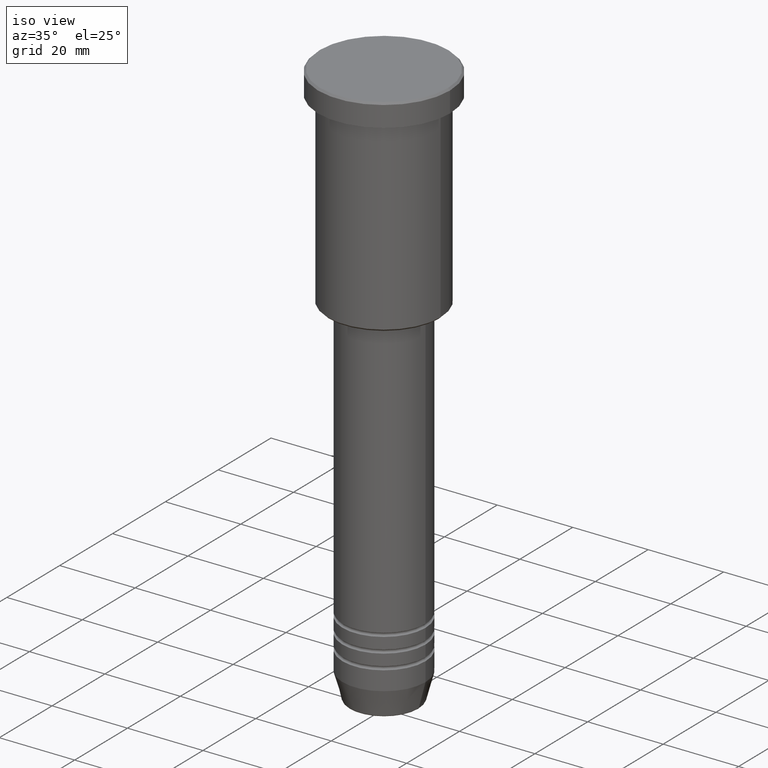
[diagram: clean part render]
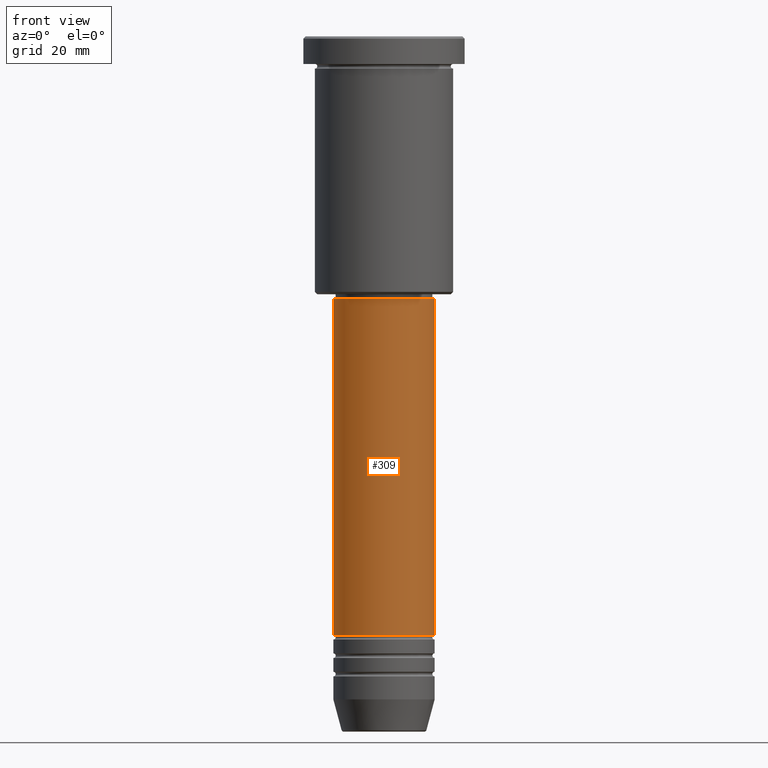
[diagram: tour spotlight — one face highlighted and labeled with its STEP entity id]
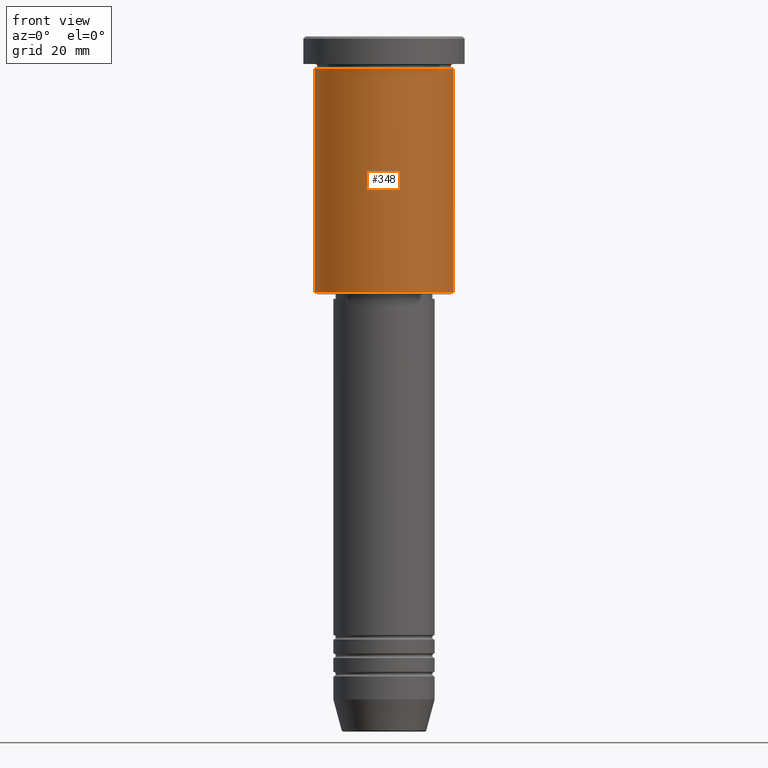
[diagram: tour spotlight — one face highlighted and labeled with its STEP entity id]
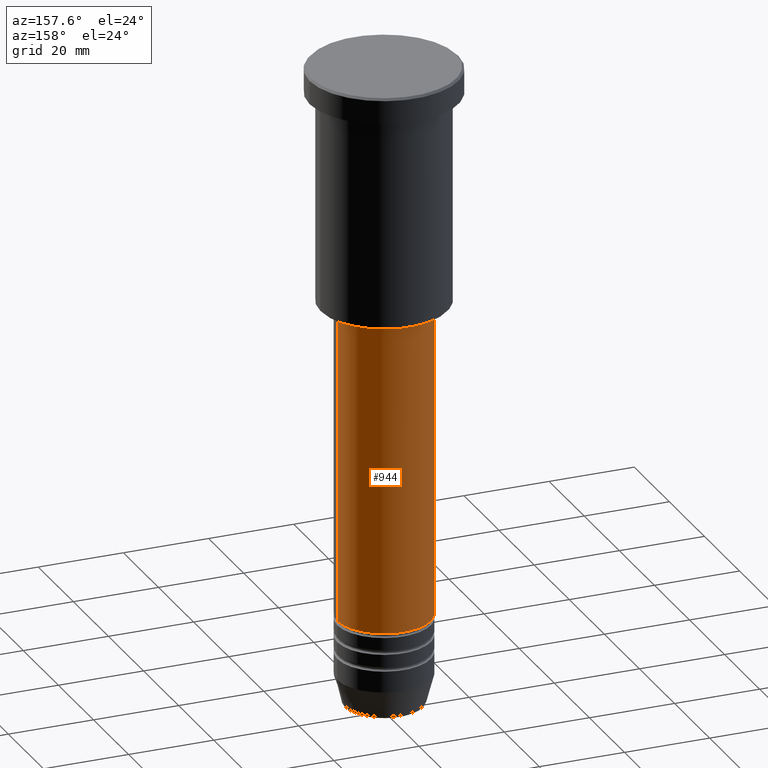
[diagram: tour spotlight — one face highlighted and labeled with its STEP entity id]
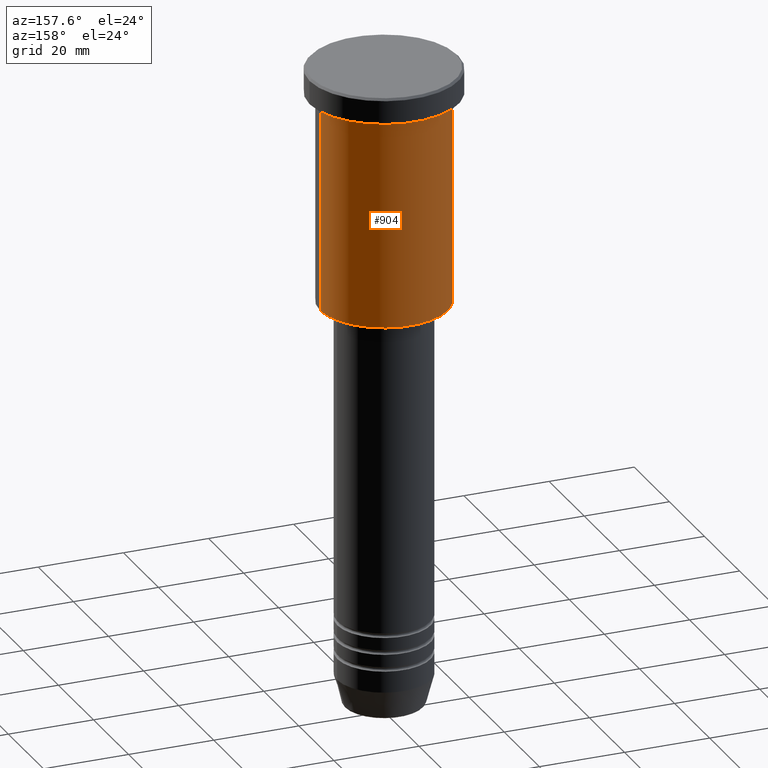
[diagram: tour spotlight — one face highlighted and labeled with its STEP entity id]
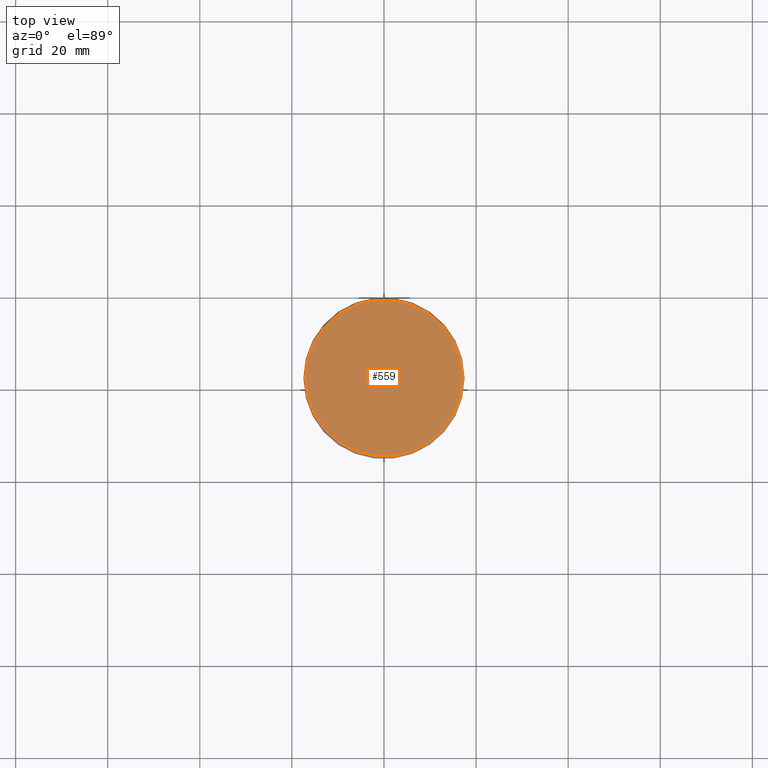
[diagram: tour spotlight — one face highlighted and labeled with its STEP entity id]
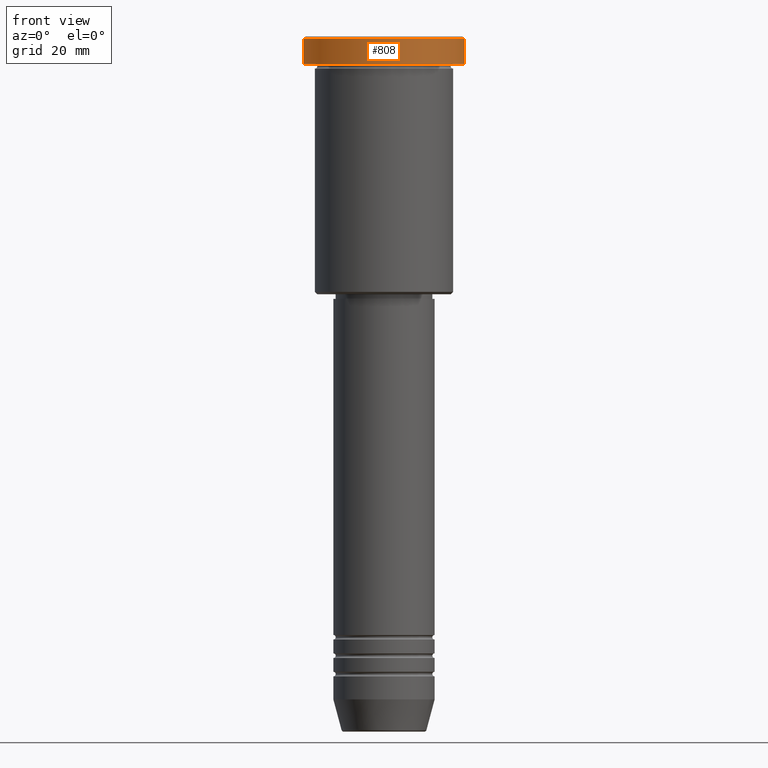
[diagram: tour spotlight — one face highlighted and labeled with its STEP entity id]
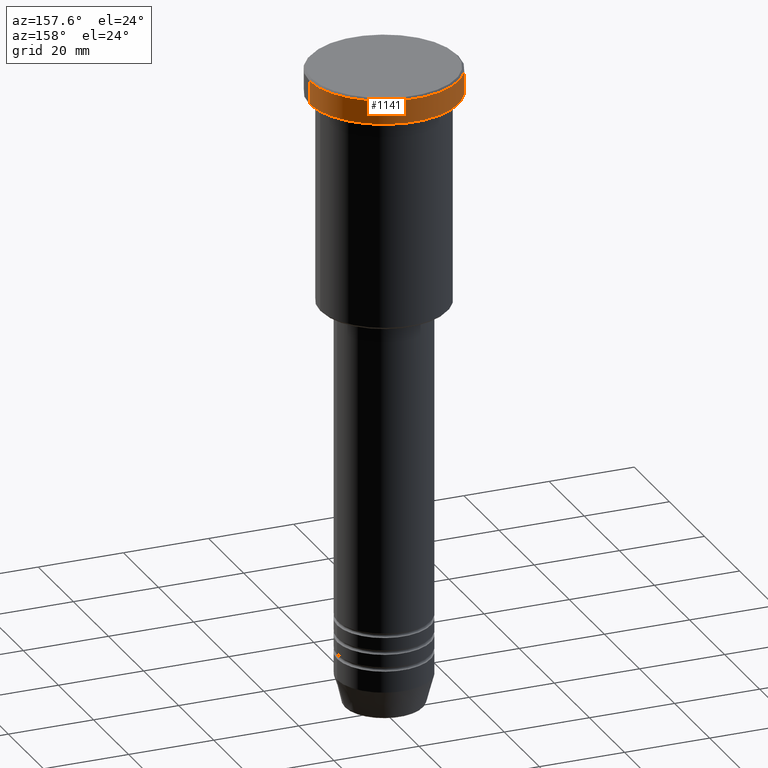
[diagram: tour spotlight — one face highlighted and labeled with its STEP entity id]
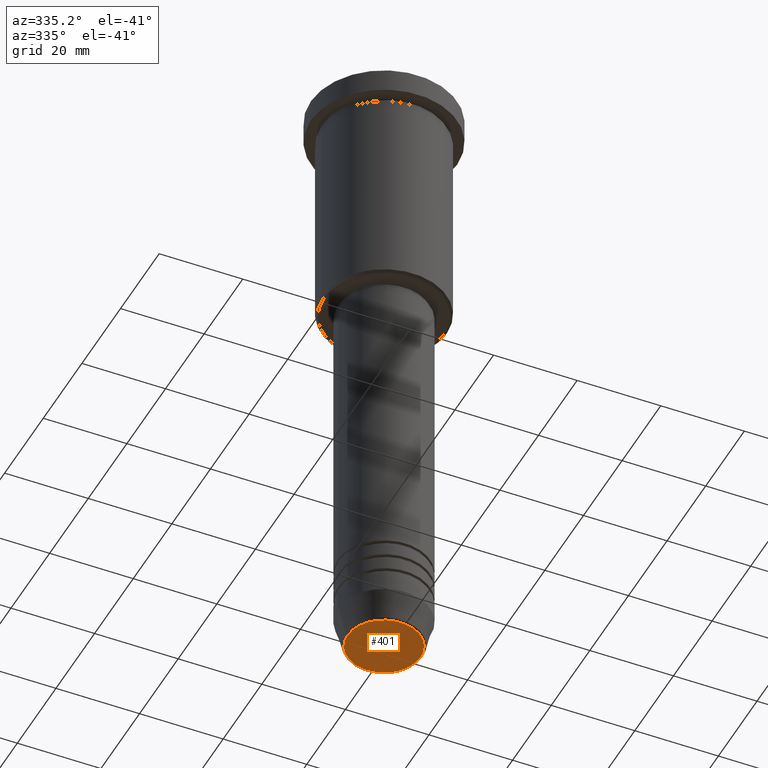
[diagram: tour spotlight — one face highlighted and labeled with its STEP entity id]
A machine part: a face-by-face anatomy tour. The part has 43 B-rep faces; the first image is the clean iso view, then the 8 largest visible faces are spotlighted one at a time (largest first), each with its STEP entity span.

Face 1 — front view, entity #309. In plain terms, the highlighted cylindrical surface (partial cylindrical patch) has radius 11 mm, axis along (-0, -0, 1).
Definition (entity closure, byte-faithful):
#21 = ORIENTED_EDGE ( 'NONE', *, *, #1041, .F. ) ;
#23 = DIRECTION ( 'NONE',  ( 1.000000000000000000, 0.000000000000000000, 0.000000000000000000 ) ) ;
#155 = VERTEX_POINT ( 'NONE', #922 ) ;
#157 = AXIS2_PLACEMENT_3D ( 'NONE', #601, #529, #957 ) ;
#168 = DIRECTION ( 'NONE',  ( 1.000000000000000000, 0.000000000000000000, 0.000000000000000000 ) ) ;
#203 = EDGE_CURVE ( 'NONE', #783, #155, #392, .T. ) ;
#218 = ORIENTED_EDGE ( 'NONE', *, *, #370, .F. ) ;
#227 = LINE ( 'NONE', #949, #554 ) ;
#228 = CYLINDRICAL_SURFACE ( 'NONE', #157, 11.00000000000000000 ) ;
#270 = EDGE_CURVE ( 'NONE', #466, #783, #906, .T. ) ;
#306 = CARTESIAN_POINT ( 'NONE',  ( 0.000000000000000000, 0.000000000000000000, -129.9999999999998863 ) ) ;
#309 = ADVANCED_FACE ( 'NONE', ( #1046 ), #228, .T. ) ;
#370 = EDGE_CURVE ( 'NONE', #432, #155, #764, .T. ) ;
#380 = AXIS2_PLACEMENT_3D ( 'NONE', #645, #634, #168 ) ;
#392 = LINE ( 'NONE', #575, #828 ) ;
#398 = AXIS2_PLACEMENT_3D ( 'NONE', #306, #494, #23 ) ;
#432 = VERTEX_POINT ( 'NONE', #674 ) ;
#466 = VERTEX_POINT ( 'NONE', #1010 ) ;
#494 = DIRECTION ( 'NONE',  ( -0.000000000000000000, -0.000000000000000000, 1.000000000000000000 ) ) ;
#529 = DIRECTION ( 'NONE',  ( -0.000000000000000000, -0.000000000000000000, 1.000000000000000000 ) ) ;
#554 = VECTOR ( 'NONE', #874, 1000.000000000000000 ) ;
#575 = CARTESIAN_POINT ( 'NONE',  ( 11.00000000000000000, 0.000000000000000000, 0.000000000000000000 ) ) ;
#591 = CARTESIAN_POINT ( 'NONE',  ( 11.00000000000000000, 0.000000000000000000, -129.9999999999998863 ) ) ;
#601 = CARTESIAN_POINT ( 'NONE',  ( 0.000000000000000000, 0.000000000000000000, 0.000000000000000000 ) ) ;
#622 = ORIENTED_EDGE ( 'NONE', *, *, #270, .T. ) ;
#634 = DIRECTION ( 'NONE',  ( -0.000000000000000000, -0.000000000000000000, 1.000000000000000000 ) ) ;
#645 = CARTESIAN_POINT ( 'NONE',  ( 0.000000000000000000, 0.000000000000000000, -57.00000000000000000 ) ) ;
#674 = CARTESIAN_POINT ( 'NONE',  ( -11.00000000000000000, 1.347111479062088405E-15, -57.00000000000000000 ) ) ;
#693 = ORIENTED_EDGE ( 'NONE', *, *, #203, .T. ) ;
#764 = CIRCLE ( 'NONE', #380, 11.00000000000000000 ) ;
#783 = VERTEX_POINT ( 'NONE', #591 ) ;
#828 = VECTOR ( 'NONE', #930, 1000.000000000000000 ) ;
#874 = DIRECTION ( 'NONE',  ( -0.000000000000000000, -0.000000000000000000, 1.000000000000000000 ) ) ;
#906 = CIRCLE ( 'NONE', #398, 11.00000000000000000 ) ;
#922 = CARTESIAN_POINT ( 'NONE',  ( 11.00000000000000000, 0.000000000000000000, -57.00000000000000000 ) ) ;
#930 = DIRECTION ( 'NONE',  ( -0.000000000000000000, -0.000000000000000000, 1.000000000000000000 ) ) ;
#949 = CARTESIAN_POINT ( 'NONE',  ( -11.00000000000000000, 1.347111479062088405E-15, 0.000000000000000000 ) ) ;
#957 = DIRECTION ( 'NONE',  ( 1.000000000000000000, 0.000000000000000000, 0.000000000000000000 ) ) ;
#1010 = CARTESIAN_POINT ( 'NONE',  ( -11.00000000000000000, 1.347111479062088405E-15, -129.9999999999998863 ) ) ;
#1041 = EDGE_CURVE ( 'NONE', #466, #432, #227, .T. ) ;
#1046 = FACE_OUTER_BOUND ( 'NONE', #1153, .T. ) ;
#1153 = EDGE_LOOP ( 'NONE', ( #21, #622, #693, #218 ) ) ;

Face 2 — front view, entity #348. In plain terms, the highlighted cylindrical surface (partial cylindrical patch) has radius 15 mm, axis along (-0, -0, 1).
Definition (entity closure, byte-faithful):
#34 = ORIENTED_EDGE ( 'NONE', *, *, #602, .F. ) ;
#72 = DIRECTION ( 'NONE',  ( -1.000000000000000000, 0.000000000000000000, 0.000000000000000000 ) ) ;
#79 = CARTESIAN_POINT ( 'NONE',  ( 0.000000000000000000, 0.000000000000000000, -55.49999999999996447 ) ) ;
#89 = CARTESIAN_POINT ( 'NONE',  ( 0.000000000000000000, 0.000000000000000000, -6.999999999999995559 ) ) ;
#104 = DIRECTION ( 'NONE',  ( -0.000000000000000000, -0.000000000000000000, 1.000000000000000000 ) ) ;
#142 = DIRECTION ( 'NONE',  ( -0.000000000000000000, -0.000000000000000000, 1.000000000000000000 ) ) ;
#211 = ORIENTED_EDGE ( 'NONE', *, *, #660, .T. ) ;
#217 = VECTOR ( 'NONE', #142, 1000.000000000000000 ) ;
#262 = DIRECTION ( 'NONE',  ( -0.000000000000000000, -0.000000000000000000, 1.000000000000000000 ) ) ;
#289 = LINE ( 'NONE', #570, #954 ) ;
#313 = EDGE_LOOP ( 'NONE', ( #34, #211, #1137, #457 ) ) ;
#318 = CIRCLE ( 'NONE', #830, 15.00000000000000000 ) ;
#334 = CARTESIAN_POINT ( 'NONE',  ( -15.00000000000000000, 1.836970198721029589E-15, -6.999999999999995559 ) ) ;
#348 = ADVANCED_FACE ( 'NONE', ( #1072 ), #1084, .T. ) ;
#363 = DIRECTION ( 'NONE',  ( 1.000000000000000000, 0.000000000000000000, 0.000000000000000000 ) ) ;
#377 = CARTESIAN_POINT ( 'NONE',  ( 0.000000000000000000, 0.000000000000000000, 0.000000000000000000 ) ) ;
#413 = CARTESIAN_POINT ( 'NONE',  ( 15.00000000000000000, 0.000000000000000000, -55.49999999999996447 ) ) ;
#451 = DIRECTION ( 'NONE',  ( -0.000000000000000000, -0.000000000000000000, 1.000000000000000000 ) ) ;
#454 = DIRECTION ( 'NONE',  ( 1.000000000000000000, 0.000000000000000000, 0.000000000000000000 ) ) ;
#456 = EDGE_CURVE ( 'NONE', #558, #883, #289, .T. ) ;
#457 = ORIENTED_EDGE ( 'NONE', *, *, #727, .F. ) ;
#547 = VERTEX_POINT ( 'NONE', #334 ) ;
#558 = VERTEX_POINT ( 'NONE', #413 ) ;
#570 = CARTESIAN_POINT ( 'NONE',  ( 15.00000000000000000, 0.000000000000000000, 0.000000000000000000 ) ) ;
#602 = EDGE_CURVE ( 'NONE', #618, #547, #859, .T. ) ;
#618 = VERTEX_POINT ( 'NONE', #1043 ) ;
#625 = AXIS2_PLACEMENT_3D ( 'NONE', #377, #262, #454 ) ;
#630 = DIRECTION ( 'NONE',  ( -0.000000000000000000, -0.000000000000000000, 1.000000000000000000 ) ) ;
#660 = EDGE_CURVE ( 'NONE', #618, #558, #318, .T. ) ;
#727 = EDGE_CURVE ( 'NONE', #547, #883, #1074, .T. ) ;
#776 = CARTESIAN_POINT ( 'NONE',  ( -15.00000000000000000, 1.836970198721029589E-15, 0.000000000000000000 ) ) ;
#830 = AXIS2_PLACEMENT_3D ( 'NONE', #79, #451, #72 ) ;
#859 = LINE ( 'NONE', #776, #217 ) ;
#883 = VERTEX_POINT ( 'NONE', #1068 ) ;
#954 = VECTOR ( 'NONE', #104, 1000.000000000000000 ) ;
#1043 = CARTESIAN_POINT ( 'NONE',  ( -15.00000000000000000, 1.836970198721029589E-15, -55.49999999999996447 ) ) ;
#1068 = CARTESIAN_POINT ( 'NONE',  ( 15.00000000000000000, 0.000000000000000000, -6.999999999999995559 ) ) ;
#1072 = FACE_OUTER_BOUND ( 'NONE', #313, .T. ) ;
#1074 = CIRCLE ( 'NONE', #1093, 15.00000000000000000 ) ;
#1084 = CYLINDRICAL_SURFACE ( 'NONE', #625, 15.00000000000000000 ) ;
#1093 = AXIS2_PLACEMENT_3D ( 'NONE', #89, #630, #363 ) ;
#1137 = ORIENTED_EDGE ( 'NONE', *, *, #456, .T. ) ;

Face 3 — auxiliary view, entity #944. In plain terms, the highlighted cylindrical surface (partial cylindrical patch) has radius 11 mm, axis along (-0, -0, 1).
Definition (entity closure, byte-faithful):
#47 = EDGE_CURVE ( 'NONE', #783, #466, #497, .T. ) ;
#111 = DIRECTION ( 'NONE',  ( 1.000000000000000000, 0.000000000000000000, 0.000000000000000000 ) ) ;
#155 = VERTEX_POINT ( 'NONE', #922 ) ;
#188 = AXIS2_PLACEMENT_3D ( 'NONE', #564, #288, #111 ) ;
#203 = EDGE_CURVE ( 'NONE', #783, #155, #392, .T. ) ;
#225 = DIRECTION ( 'NONE',  ( -0.000000000000000000, -0.000000000000000000, 1.000000000000000000 ) ) ;
#227 = LINE ( 'NONE', #949, #554 ) ;
#288 = DIRECTION ( 'NONE',  ( -0.000000000000000000, -0.000000000000000000, 1.000000000000000000 ) ) ;
#392 = LINE ( 'NONE', #575, #828 ) ;
#432 = VERTEX_POINT ( 'NONE', #674 ) ;
#455 = ORIENTED_EDGE ( 'NONE', *, *, #47, .T. ) ;
#466 = VERTEX_POINT ( 'NONE', #1010 ) ;
#468 = CYLINDRICAL_SURFACE ( 'NONE', #832, 11.00000000000000000 ) ;
#497 = CIRCLE ( 'NONE', #188, 11.00000000000000000 ) ;
#518 = ORIENTED_EDGE ( 'NONE', *, *, #1041, .T. ) ;
#554 = VECTOR ( 'NONE', #874, 1000.000000000000000 ) ;
#564 = CARTESIAN_POINT ( 'NONE',  ( 0.000000000000000000, 0.000000000000000000, -129.9999999999998863 ) ) ;
#571 = CIRCLE ( 'NONE', #715, 11.00000000000000000 ) ;
#575 = CARTESIAN_POINT ( 'NONE',  ( 11.00000000000000000, 0.000000000000000000, 0.000000000000000000 ) ) ;
#591 = CARTESIAN_POINT ( 'NONE',  ( 11.00000000000000000, 0.000000000000000000, -129.9999999999998863 ) ) ;
#593 = DIRECTION ( 'NONE',  ( 1.000000000000000000, 0.000000000000000000, 0.000000000000000000 ) ) ;
#611 = EDGE_CURVE ( 'NONE', #155, #432, #571, .T. ) ;
#659 = DIRECTION ( 'NONE',  ( 1.000000000000000000, 0.000000000000000000, 0.000000000000000000 ) ) ;
#674 = CARTESIAN_POINT ( 'NONE',  ( -11.00000000000000000, 1.347111479062088405E-15, -57.00000000000000000 ) ) ;
#689 = CARTESIAN_POINT ( 'NONE',  ( 0.000000000000000000, 0.000000000000000000, -57.00000000000000000 ) ) ;
#715 = AXIS2_PLACEMENT_3D ( 'NONE', #689, #225, #593 ) ;
#773 = EDGE_LOOP ( 'NONE', ( #455, #518, #1057, #1116 ) ) ;
#783 = VERTEX_POINT ( 'NONE', #591 ) ;
#815 = CARTESIAN_POINT ( 'NONE',  ( 0.000000000000000000, 0.000000000000000000, 0.000000000000000000 ) ) ;
#828 = VECTOR ( 'NONE', #930, 1000.000000000000000 ) ;
#832 = AXIS2_PLACEMENT_3D ( 'NONE', #815, #916, #659 ) ;
#874 = DIRECTION ( 'NONE',  ( -0.000000000000000000, -0.000000000000000000, 1.000000000000000000 ) ) ;
#916 = DIRECTION ( 'NONE',  ( -0.000000000000000000, -0.000000000000000000, 1.000000000000000000 ) ) ;
#922 = CARTESIAN_POINT ( 'NONE',  ( 11.00000000000000000, 0.000000000000000000, -57.00000000000000000 ) ) ;
#930 = DIRECTION ( 'NONE',  ( -0.000000000000000000, -0.000000000000000000, 1.000000000000000000 ) ) ;
#944 = ADVANCED_FACE ( 'NONE', ( #1169 ), #468, .T. ) ;
#949 = CARTESIAN_POINT ( 'NONE',  ( -11.00000000000000000, 1.347111479062088405E-15, 0.000000000000000000 ) ) ;
#1010 = CARTESIAN_POINT ( 'NONE',  ( -11.00000000000000000, 1.347111479062088405E-15, -129.9999999999998863 ) ) ;
#1041 = EDGE_CURVE ( 'NONE', #466, #432, #227, .T. ) ;
#1057 = ORIENTED_EDGE ( 'NONE', *, *, #611, .F. ) ;
#1116 = ORIENTED_EDGE ( 'NONE', *, *, #203, .F. ) ;
#1169 = FACE_OUTER_BOUND ( 'NONE', #773, .T. ) ;

Face 4 — auxiliary view, entity #904. In plain terms, the highlighted cylindrical surface (partial cylindrical patch) has radius 15 mm, axis along (-0, -0, 1).
Definition (entity closure, byte-faithful):
#33 = DIRECTION ( 'NONE',  ( -0.000000000000000000, -0.000000000000000000, 1.000000000000000000 ) ) ;
#104 = DIRECTION ( 'NONE',  ( -0.000000000000000000, -0.000000000000000000, 1.000000000000000000 ) ) ;
#142 = DIRECTION ( 'NONE',  ( -0.000000000000000000, -0.000000000000000000, 1.000000000000000000 ) ) ;
#165 = DIRECTION ( 'NONE',  ( -0.000000000000000000, -0.000000000000000000, 1.000000000000000000 ) ) ;
#189 = CARTESIAN_POINT ( 'NONE',  ( 0.000000000000000000, 0.000000000000000000, 0.000000000000000000 ) ) ;
#217 = VECTOR ( 'NONE', #142, 1000.000000000000000 ) ;
#289 = LINE ( 'NONE', #570, #954 ) ;
#315 = CARTESIAN_POINT ( 'NONE',  ( 0.000000000000000000, 0.000000000000000000, -6.999999999999995559 ) ) ;
#322 = CIRCLE ( 'NONE', #1109, 15.00000000000000000 ) ;
#334 = CARTESIAN_POINT ( 'NONE',  ( -15.00000000000000000, 1.836970198721029589E-15, -6.999999999999995559 ) ) ;
#413 = CARTESIAN_POINT ( 'NONE',  ( 15.00000000000000000, 0.000000000000000000, -55.49999999999996447 ) ) ;
#456 = EDGE_CURVE ( 'NONE', #558, #883, #289, .T. ) ;
#476 = DIRECTION ( 'NONE',  ( -0.000000000000000000, -0.000000000000000000, 1.000000000000000000 ) ) ;
#524 = ORIENTED_EDGE ( 'NONE', *, *, #1018, .F. ) ;
#547 = VERTEX_POINT ( 'NONE', #334 ) ;
#548 = CYLINDRICAL_SURFACE ( 'NONE', #766, 15.00000000000000000 ) ;
#557 = DIRECTION ( 'NONE',  ( 1.000000000000000000, 0.000000000000000000, 0.000000000000000000 ) ) ;
#558 = VERTEX_POINT ( 'NONE', #413 ) ;
#570 = CARTESIAN_POINT ( 'NONE',  ( 15.00000000000000000, 0.000000000000000000, 0.000000000000000000 ) ) ;
#602 = EDGE_CURVE ( 'NONE', #618, #547, #859, .T. ) ;
#618 = VERTEX_POINT ( 'NONE', #1043 ) ;
#626 = FACE_OUTER_BOUND ( 'NONE', #711, .T. ) ;
#707 = ORIENTED_EDGE ( 'NONE', *, *, #882, .T. ) ;
#711 = EDGE_LOOP ( 'NONE', ( #707, #1183, #524, #1132 ) ) ;
#766 = AXIS2_PLACEMENT_3D ( 'NONE', #189, #165, #557 ) ;
#776 = CARTESIAN_POINT ( 'NONE',  ( -15.00000000000000000, 1.836970198721029589E-15, 0.000000000000000000 ) ) ;
#807 = CARTESIAN_POINT ( 'NONE',  ( 0.000000000000000000, 0.000000000000000000, -55.49999999999996447 ) ) ;
#827 = DIRECTION ( 'NONE',  ( -1.000000000000000000, 0.000000000000000000, 0.000000000000000000 ) ) ;
#859 = LINE ( 'NONE', #776, #217 ) ;
#882 = EDGE_CURVE ( 'NONE', #558, #618, #1094, .T. ) ;
#883 = VERTEX_POINT ( 'NONE', #1068 ) ;
#904 = ADVANCED_FACE ( 'NONE', ( #626 ), #548, .T. ) ;
#954 = VECTOR ( 'NONE', #104, 1000.000000000000000 ) ;
#1018 = EDGE_CURVE ( 'NONE', #883, #547, #322, .T. ) ;
#1032 = AXIS2_PLACEMENT_3D ( 'NONE', #807, #476, #827 ) ;
#1043 = CARTESIAN_POINT ( 'NONE',  ( -15.00000000000000000, 1.836970198721029589E-15, -55.49999999999996447 ) ) ;
#1045 = DIRECTION ( 'NONE',  ( 1.000000000000000000, 0.000000000000000000, 0.000000000000000000 ) ) ;
#1068 = CARTESIAN_POINT ( 'NONE',  ( 15.00000000000000000, 0.000000000000000000, -6.999999999999995559 ) ) ;
#1094 = CIRCLE ( 'NONE', #1032, 15.00000000000000000 ) ;
#1109 = AXIS2_PLACEMENT_3D ( 'NONE', #315, #33, #1045 ) ;
#1132 = ORIENTED_EDGE ( 'NONE', *, *, #456, .F. ) ;
#1183 = ORIENTED_EDGE ( 'NONE', *, *, #602, .T. ) ;

Face 5 — top view, entity #559. In plain terms, the highlighted planar face has unit normal (0, -0, 1).
Definition (entity closure, byte-faithful):
#113 = ORIENTED_EDGE ( 'NONE', *, *, #196, .T. ) ;
#125 = DIRECTION ( 'NONE',  ( 1.000000000000000000, 0.000000000000000000, 0.000000000000000000 ) ) ;
#135 = DIRECTION ( 'NONE',  ( 1.000000000000000000, 0.000000000000000000, 0.000000000000000000 ) ) ;
#148 = FACE_OUTER_BOUND ( 'NONE', #383, .T. ) ;
#153 = VERTEX_POINT ( 'NONE', #1013 ) ;
#159 = EDGE_CURVE ( 'NONE', #999, #153, #337, .T. ) ;
#196 = EDGE_CURVE ( 'NONE', #153, #999, #959, .T. ) ;
#223 = CARTESIAN_POINT ( 'NONE',  ( 17.00000000000004263, 2.112515728529187222E-15, 0.000000000000000000 ) ) ;
#236 = ORIENTED_EDGE ( 'NONE', *, *, #159, .T. ) ;
#305 = DIRECTION ( 'NONE',  ( 1.000000000000000000, 0.000000000000000000, 0.000000000000000000 ) ) ;
#314 = PLANE ( 'NONE',  #939 ) ;
#337 = CIRCLE ( 'NONE', #513, 17.00000000000004263 ) ;
#383 = EDGE_LOOP ( 'NONE', ( #113, #236 ) ) ;
#396 = AXIS2_PLACEMENT_3D ( 'NONE', #935, #853, #125 ) ;
#501 = DIRECTION ( 'NONE',  ( -0.000000000000000000, -0.000000000000000000, 1.000000000000000000 ) ) ;
#513 = AXIS2_PLACEMENT_3D ( 'NONE', #672, #501, #305 ) ;
#521 = DIRECTION ( 'NONE',  ( 0.000000000000000000, -0.000000000000000000, 1.000000000000000000 ) ) ;
#559 = ADVANCED_FACE ( 'NONE', ( #148 ), #314, .T. ) ;
#672 = CARTESIAN_POINT ( 'NONE',  ( 0.000000000000000000, 0.000000000000000000, 0.000000000000000000 ) ) ;
#762 = CARTESIAN_POINT ( 'NONE',  ( 0.000000000000000000, 0.000000000000000000, 0.000000000000000000 ) ) ;
#853 = DIRECTION ( 'NONE',  ( -0.000000000000000000, -0.000000000000000000, 1.000000000000000000 ) ) ;
#935 = CARTESIAN_POINT ( 'NONE',  ( 0.000000000000000000, 0.000000000000000000, 0.000000000000000000 ) ) ;
#939 = AXIS2_PLACEMENT_3D ( 'NONE', #762, #521, #135 ) ;
#959 = CIRCLE ( 'NONE', #396, 17.00000000000004263 ) ;
#999 = VERTEX_POINT ( 'NONE', #223 ) ;
#1013 = CARTESIAN_POINT ( 'NONE',  ( -17.00000000000004263, 0.000000000000000000, 0.000000000000000000 ) ) ;

Face 6 — front view, entity #808. In plain terms, the highlighted cylindrical surface (partial cylindrical patch) has radius 17.5 mm, axis along (-0, -0, 1).
Definition (entity closure, byte-faithful):
#40 = VERTEX_POINT ( 'NONE', #478 ) ;
#112 = DIRECTION ( 'NONE',  ( -0.000000000000000000, -0.000000000000000000, 1.000000000000000000 ) ) ;
#139 = VECTOR ( 'NONE', #112, 1000.000000000000000 ) ;
#144 = CARTESIAN_POINT ( 'NONE',  ( 17.50000000000000000, 0.000000000000000000, 0.000000000000000000 ) ) ;
#232 = ORIENTED_EDGE ( 'NONE', *, *, #690, .T. ) ;
#237 = AXIS2_PLACEMENT_3D ( 'NONE', #539, #709, #802 ) ;
#291 = EDGE_CURVE ( 'NONE', #40, #1147, #1050, .T. ) ;
#423 = DIRECTION ( 'NONE',  ( 1.000000000000000000, 0.000000000000000000, 0.000000000000000000 ) ) ;
#443 = EDGE_CURVE ( 'NONE', #544, #1147, #1112, .T. ) ;
#444 = CARTESIAN_POINT ( 'NONE',  ( -17.50000000000000000, 2.143131898507868248E-15, -5.999999999999995559 ) ) ;
#478 = CARTESIAN_POINT ( 'NONE',  ( 17.50000000000000000, 0.000000000000000000, -0.4999999999999865663 ) ) ;
#527 = EDGE_LOOP ( 'NONE', ( #1173, #232, #1085, #1087 ) ) ;
#536 = CARTESIAN_POINT ( 'NONE',  ( -17.50000000000000000, 2.143131898507868248E-15, -0.4999999999999865663 ) ) ;
#539 = CARTESIAN_POINT ( 'NONE',  ( 0.000000000000000000, 0.000000000000000000, -5.999999999999995559 ) ) ;
#544 = VERTEX_POINT ( 'NONE', #444 ) ;
#613 = FACE_OUTER_BOUND ( 'NONE', #527, .T. ) ;
#665 = CIRCLE ( 'NONE', #237, 17.50000000000000000 ) ;
#677 = VERTEX_POINT ( 'NONE', #989 ) ;
#680 = AXIS2_PLACEMENT_3D ( 'NONE', #1114, #1117, #423 ) ;
#687 = CYLINDRICAL_SURFACE ( 'NONE', #1052, 17.50000000000000000 ) ;
#690 = EDGE_CURVE ( 'NONE', #544, #677, #665, .T. ) ;
#703 = LINE ( 'NONE', #144, #716 ) ;
#709 = DIRECTION ( 'NONE',  ( -0.000000000000000000, -0.000000000000000000, 1.000000000000000000 ) ) ;
#716 = VECTOR ( 'NONE', #940, 1000.000000000000000 ) ;
#752 = CARTESIAN_POINT ( 'NONE',  ( -17.50000000000000000, 2.143131898507868248E-15, 0.000000000000000000 ) ) ;
#802 = DIRECTION ( 'NONE',  ( 1.000000000000000000, 0.000000000000000000, 0.000000000000000000 ) ) ;
#808 = ADVANCED_FACE ( 'NONE', ( #613 ), #687, .T. ) ;
#876 = DIRECTION ( 'NONE',  ( -0.000000000000000000, -0.000000000000000000, 1.000000000000000000 ) ) ;
#888 = DIRECTION ( 'NONE',  ( 1.000000000000000000, 0.000000000000000000, 0.000000000000000000 ) ) ;
#940 = DIRECTION ( 'NONE',  ( -0.000000000000000000, -0.000000000000000000, 1.000000000000000000 ) ) ;
#971 = CARTESIAN_POINT ( 'NONE',  ( 0.000000000000000000, 0.000000000000000000, 0.000000000000000000 ) ) ;
#989 = CARTESIAN_POINT ( 'NONE',  ( 17.50000000000000000, 0.000000000000000000, -5.999999999999995559 ) ) ;
#1005 = EDGE_CURVE ( 'NONE', #677, #40, #703, .T. ) ;
#1050 = CIRCLE ( 'NONE', #680, 17.50000000000000000 ) ;
#1052 = AXIS2_PLACEMENT_3D ( 'NONE', #971, #876, #888 ) ;
#1085 = ORIENTED_EDGE ( 'NONE', *, *, #1005, .T. ) ;
#1087 = ORIENTED_EDGE ( 'NONE', *, *, #291, .T. ) ;
#1112 = LINE ( 'NONE', #752, #139 ) ;
#1114 = CARTESIAN_POINT ( 'NONE',  ( 0.000000000000000000, 0.000000000000000000, -0.4999999999999865663 ) ) ;
#1117 = DIRECTION ( 'NONE',  ( 0.000000000000000000, 0.000000000000000000, -1.000000000000000000 ) ) ;
#1147 = VERTEX_POINT ( 'NONE', #536 ) ;
#1173 = ORIENTED_EDGE ( 'NONE', *, *, #443, .F. ) ;

Face 7 — auxiliary view, entity #1141. In plain terms, the highlighted cylindrical surface (partial cylindrical patch) has radius 17.5 mm, axis along (-0, -0, 1).
Definition (entity closure, byte-faithful):
#40 = VERTEX_POINT ( 'NONE', #478 ) ;
#58 = CYLINDRICAL_SURFACE ( 'NONE', #1146, 17.50000000000000000 ) ;
#112 = DIRECTION ( 'NONE',  ( -0.000000000000000000, -0.000000000000000000, 1.000000000000000000 ) ) ;
#139 = VECTOR ( 'NONE', #112, 1000.000000000000000 ) ;
#144 = CARTESIAN_POINT ( 'NONE',  ( 17.50000000000000000, 0.000000000000000000, 0.000000000000000000 ) ) ;
#150 = DIRECTION ( 'NONE',  ( 0.000000000000000000, 0.000000000000000000, -1.000000000000000000 ) ) ;
#244 = AXIS2_PLACEMENT_3D ( 'NONE', #540, #1172, #459 ) ;
#261 = FACE_OUTER_BOUND ( 'NONE', #1040, .T. ) ;
#279 = AXIS2_PLACEMENT_3D ( 'NONE', #430, #150, #523 ) ;
#282 = CIRCLE ( 'NONE', #244, 17.50000000000000000 ) ;
#327 = ORIENTED_EDGE ( 'NONE', *, *, #1159, .T. ) ;
#367 = ORIENTED_EDGE ( 'NONE', *, *, #1005, .F. ) ;
#385 = CIRCLE ( 'NONE', #279, 17.50000000000000000 ) ;
#430 = CARTESIAN_POINT ( 'NONE',  ( 0.000000000000000000, 0.000000000000000000, -0.4999999999999865663 ) ) ;
#443 = EDGE_CURVE ( 'NONE', #544, #1147, #1112, .T. ) ;
#444 = CARTESIAN_POINT ( 'NONE',  ( -17.50000000000000000, 2.143131898507868248E-15, -5.999999999999995559 ) ) ;
#448 = CARTESIAN_POINT ( 'NONE',  ( 0.000000000000000000, 0.000000000000000000, 0.000000000000000000 ) ) ;
#459 = DIRECTION ( 'NONE',  ( 1.000000000000000000, 0.000000000000000000, 0.000000000000000000 ) ) ;
#478 = CARTESIAN_POINT ( 'NONE',  ( 17.50000000000000000, 0.000000000000000000, -0.4999999999999865663 ) ) ;
#523 = DIRECTION ( 'NONE',  ( 1.000000000000000000, 0.000000000000000000, 0.000000000000000000 ) ) ;
#536 = CARTESIAN_POINT ( 'NONE',  ( -17.50000000000000000, 2.143131898507868248E-15, -0.4999999999999865663 ) ) ;
#540 = CARTESIAN_POINT ( 'NONE',  ( 0.000000000000000000, 0.000000000000000000, -5.999999999999995559 ) ) ;
#544 = VERTEX_POINT ( 'NONE', #444 ) ;
#623 = DIRECTION ( 'NONE',  ( -0.000000000000000000, -0.000000000000000000, 1.000000000000000000 ) ) ;
#633 = DIRECTION ( 'NONE',  ( 1.000000000000000000, 0.000000000000000000, 0.000000000000000000 ) ) ;
#677 = VERTEX_POINT ( 'NONE', #989 ) ;
#703 = LINE ( 'NONE', #144, #716 ) ;
#716 = VECTOR ( 'NONE', #940, 1000.000000000000000 ) ;
#752 = CARTESIAN_POINT ( 'NONE',  ( -17.50000000000000000, 2.143131898507868248E-15, 0.000000000000000000 ) ) ;
#879 = ORIENTED_EDGE ( 'NONE', *, *, #443, .T. ) ;
#940 = DIRECTION ( 'NONE',  ( -0.000000000000000000, -0.000000000000000000, 1.000000000000000000 ) ) ;
#989 = CARTESIAN_POINT ( 'NONE',  ( 17.50000000000000000, 0.000000000000000000, -5.999999999999995559 ) ) ;
#1005 = EDGE_CURVE ( 'NONE', #677, #40, #703, .T. ) ;
#1035 = ORIENTED_EDGE ( 'NONE', *, *, #1051, .T. ) ;
#1040 = EDGE_LOOP ( 'NONE', ( #327, #879, #1035, #367 ) ) ;
#1051 = EDGE_CURVE ( 'NONE', #1147, #40, #385, .T. ) ;
#1112 = LINE ( 'NONE', #752, #139 ) ;
#1141 = ADVANCED_FACE ( 'NONE', ( #261 ), #58, .T. ) ;
#1146 = AXIS2_PLACEMENT_3D ( 'NONE', #448, #623, #633 ) ;
#1147 = VERTEX_POINT ( 'NONE', #536 ) ;
#1159 = EDGE_CURVE ( 'NONE', #677, #544, #282, .T. ) ;
#1172 = DIRECTION ( 'NONE',  ( -0.000000000000000000, -0.000000000000000000, 1.000000000000000000 ) ) ;

Face 8 — auxiliary view, entity #401. In plain terms, the highlighted planar face has unit normal (0, -0, 1).
Definition (entity closure, byte-faithful):
#25 = DIRECTION ( 'NONE',  ( 1.000000000000000000, 0.000000000000000000, 0.000000000000000000 ) ) ;
#98 = EDGE_CURVE ( 'NONE', #507, #976, #845, .T. ) ;
#136 = ORIENTED_EDGE ( 'NONE', *, *, #467, .T. ) ;
#210 = DIRECTION ( 'NONE',  ( 0.000000000000000000, 0.000000000000000000, -1.000000000000000000 ) ) ;
#293 = PLANE ( 'NONE',  #340 ) ;
#303 = DIRECTION ( 'NONE',  ( 0.000000000000000000, -0.000000000000000000, 1.000000000000000000 ) ) ;
#340 = AXIS2_PLACEMENT_3D ( 'NONE', #1021, #303, #746 ) ;
#360 = ORIENTED_EDGE ( 'NONE', *, *, #98, .T. ) ;
#395 = FACE_OUTER_BOUND ( 'NONE', #795, .T. ) ;
#401 = ADVANCED_FACE ( 'NONE', ( #395 ), #293, .F. ) ;
#461 = CIRCLE ( 'NONE', #1106, 8.740692158992656502 ) ;
#467 = EDGE_CURVE ( 'NONE', #976, #507, #461, .T. ) ;
#490 = CARTESIAN_POINT ( 'NONE',  ( 0.000000000000000000, 0.000000000000000000, -151.0000000000000284 ) ) ;
#507 = VERTEX_POINT ( 'NONE', #943 ) ;
#573 = CARTESIAN_POINT ( 'NONE',  ( 0.000000000000000000, 0.000000000000000000, -151.0000000000000284 ) ) ;
#696 = AXIS2_PLACEMENT_3D ( 'NONE', #490, #855, #25 ) ;
#746 = DIRECTION ( 'NONE',  ( 1.000000000000000000, 0.000000000000000000, 0.000000000000000000 ) ) ;
#795 = EDGE_LOOP ( 'NONE', ( #360, #136 ) ) ;
#845 = CIRCLE ( 'NONE', #696, 8.740692158992656502 ) ;
#855 = DIRECTION ( 'NONE',  ( 0.000000000000000000, 0.000000000000000000, -1.000000000000000000 ) ) ;
#928 = DIRECTION ( 'NONE',  ( 1.000000000000000000, 0.000000000000000000, 0.000000000000000000 ) ) ;
#943 = CARTESIAN_POINT ( 'NONE',  ( 8.740692158992656502, 0.000000000000000000, -151.0000000000000284 ) ) ;
#976 = VERTEX_POINT ( 'NONE', #1138 ) ;
#1021 = CARTESIAN_POINT ( 'NONE',  ( 0.000000000000000000, 0.000000000000000000, -151.0000000000000284 ) ) ;
#1106 = AXIS2_PLACEMENT_3D ( 'NONE', #573, #210, #928 ) ;
#1138 = CARTESIAN_POINT ( 'NONE',  ( -8.740692158992656502, 1.099999016768739653E-15, -151.0000000000000284 ) ) ;